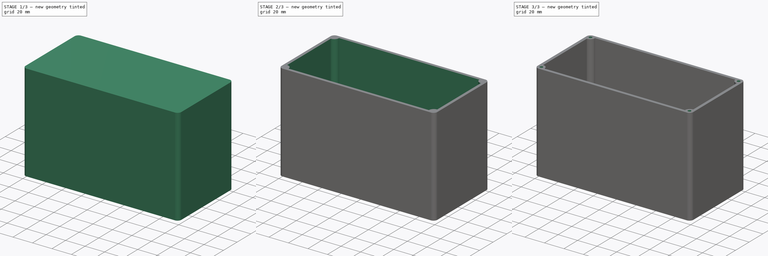
[diagram: build sequence overview — one tinted view per stage of 3, left to right]
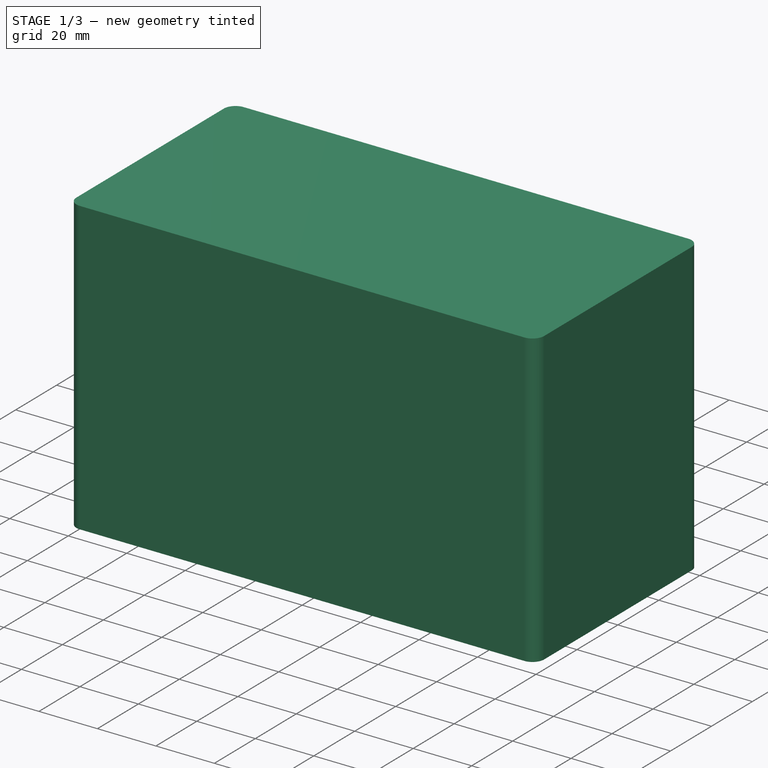
[diagram: stage 1 of 3 — iso view after this stage's code; geometry added in this stage tinted green]
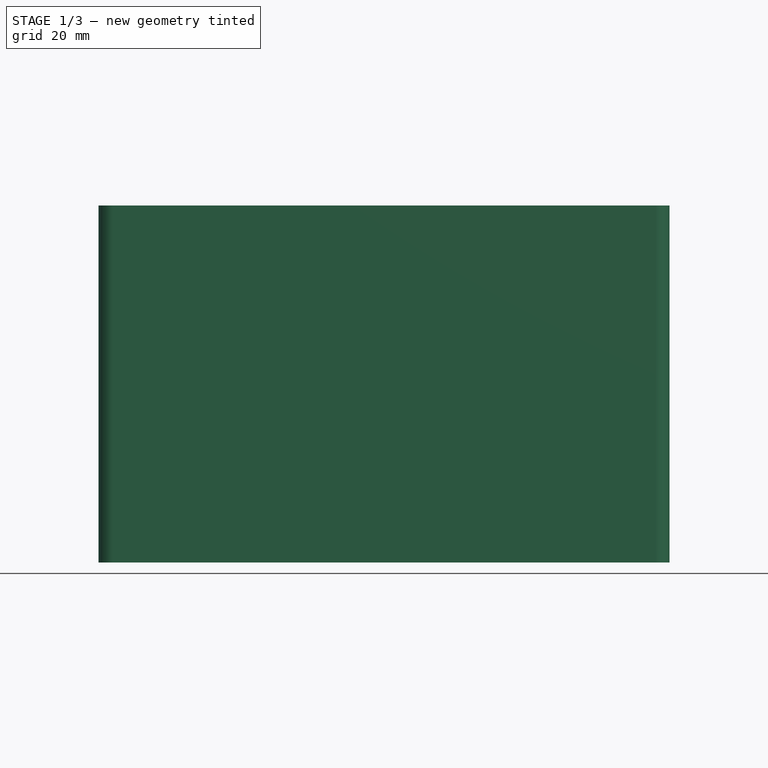
[diagram: stage 1 of 3 — front view after this stage's code; geometry added in this stage tinted green]
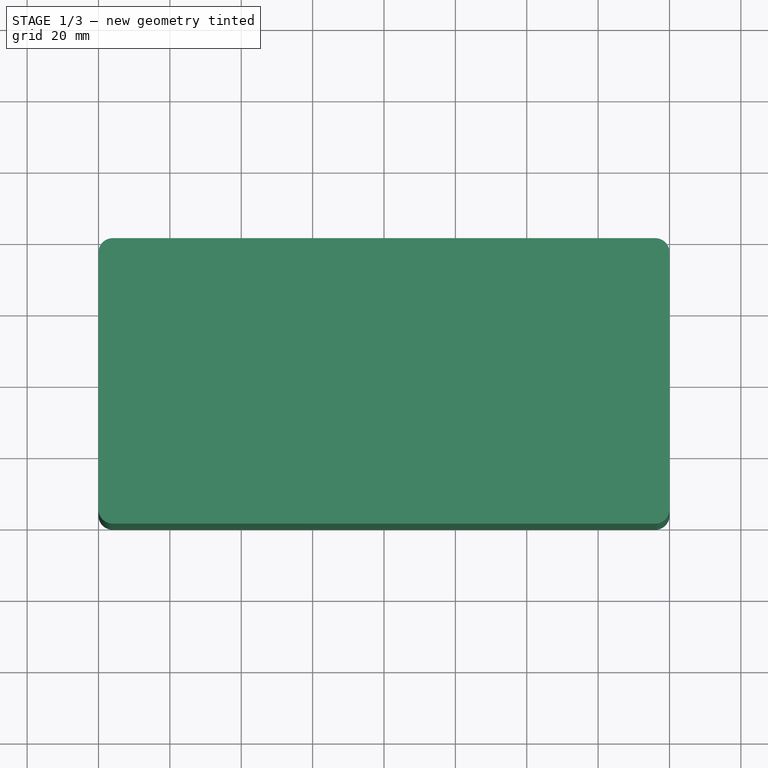
[diagram: stage 1 of 3 — top view after this stage's code; geometry added in this stage tinted green]
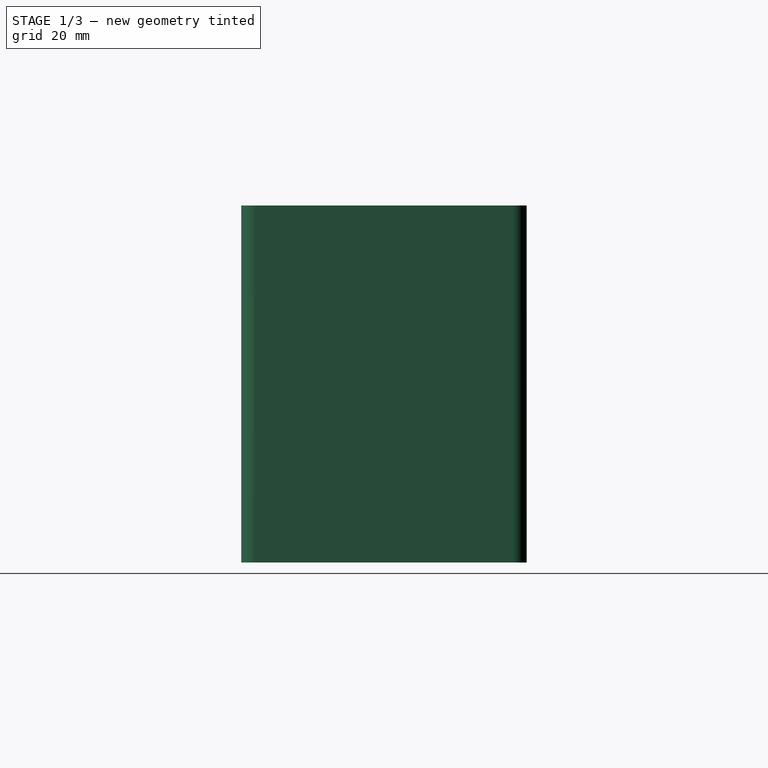
[diagram: stage 1 of 3 — right view after this stage's code; geometry added in this stage tinted green]
FCSTD DOCUMENT  (FreeCAD 1.0R39319 (Git))
Label: Zbiornik
License: All rights reserved
LicenseURL: https://en.wikipedia.org/wiki/All_rights_reserved
objects: Sketcher::SketchObject×3, PartDesign::Pocket×2, PartDesign::Mirrored×2, PartDesign::Pad×1, PartDesign::Fillet×1, PartDesign::MultiTransform×1, PartDesign::Body×1
note: 25 computed .brp shape members not serialized (recipe doc carries the construction recipe); baked Part::Feature solids carry a one-line shape summary decoded from their .brp

FEATURE [Sketcher::SketchObject] Sketch
  ArcFitTolerance = 1e-06
  AttachmentSupport = -> [XY_Plane]
  FullyConstrained = true
  MakeInternals = false
  MapMode = 5
  sketch-geometry (6):
    g0: LineSegment StartX=-80 StartY=40 StartZ=0 EndX=-80 EndY=-40 EndZ=0
    g1: LineSegment StartX=-80 StartY=-40 StartZ=0 EndX=80 EndY=-40 EndZ=0
    g2: LineSegment StartX=80 StartY=-40 StartZ=0 EndX=80 EndY=40 EndZ=0
    g3: LineSegment StartX=80 StartY=40 StartZ=0 EndX=-80 EndY=40 EndZ=0
    g4: GeomPoint [constr] X=0 Y=0 Z=0
    g5: GeomPoint [constr] X=0 Y=0 Z=0
  constraints (13):
    c: Coincident(g0,g1)
    c: Coincident(g1,g2)
    c: Coincident(g2,g3)
    c: Coincident(g3,g0)
    c: Vertical(g0)
    c: Vertical(g2)
    c: Horizontal(g1)
    c: Horizontal(g3)
    c: Symmetric(g2,g0,g4)
    c: Coincident(g4,g-1)
    c: DistanceY(g0,g0) = 80
    c: DistanceX(g3,g3) = 160
    c: Coincident(g5,g4)
FEATURE [PartDesign::Pad] Pad
  Direction = (0,0,1)
  Length = 100
  Length2 = 10
  Profile = -> Sketch
  ReferenceAxis = -> Sketch [N_Axis]
  Refine = true
  Suppressed = false
  Type = 0
FEATURE [PartDesign::Fillet] Fillet
  Base = -> Pad [Edge5,Edge8,Edge1,Edge2]
  BaseFeature = -> Pad
  Radius = 4
  Refine = true
  SupportTransform = false
  Suppressed = false
  UseAllEdges = false
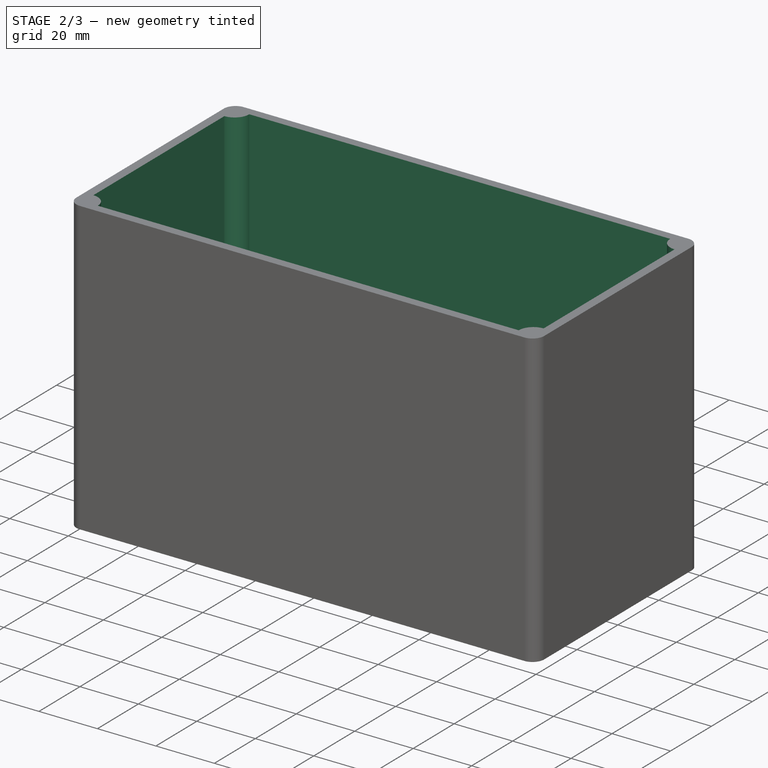
[diagram: stage 2 of 3 — iso view after this stage's code; geometry added in this stage tinted green]
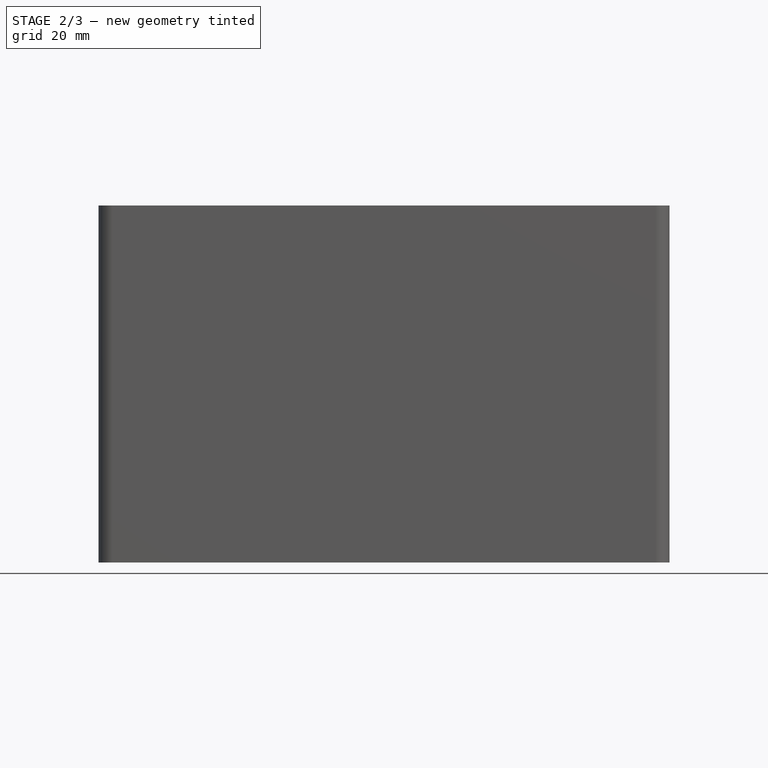
[diagram: stage 2 of 3 — front view after this stage's code; geometry added in this stage tinted green]
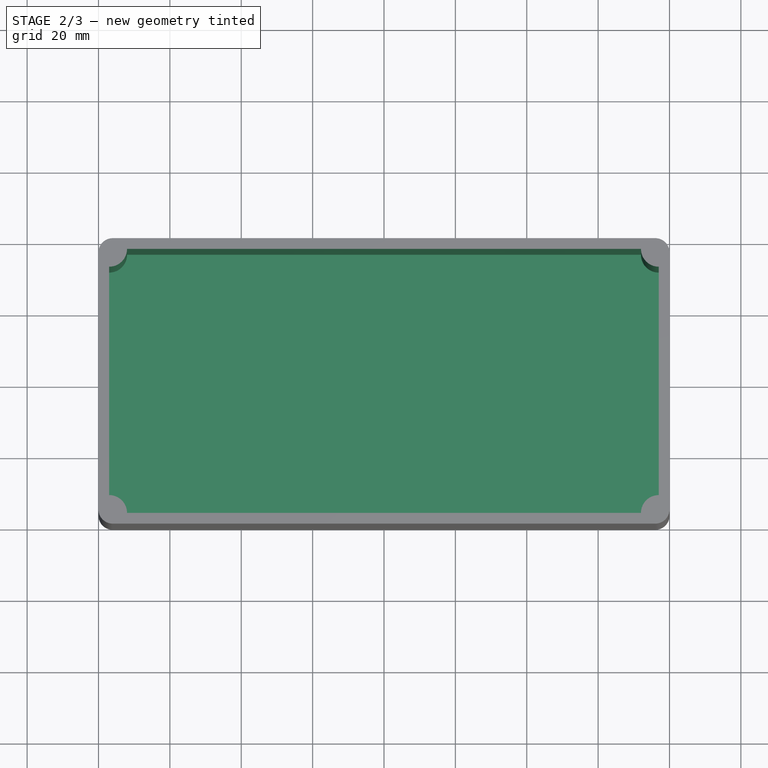
[diagram: stage 2 of 3 — top view after this stage's code; geometry added in this stage tinted green]
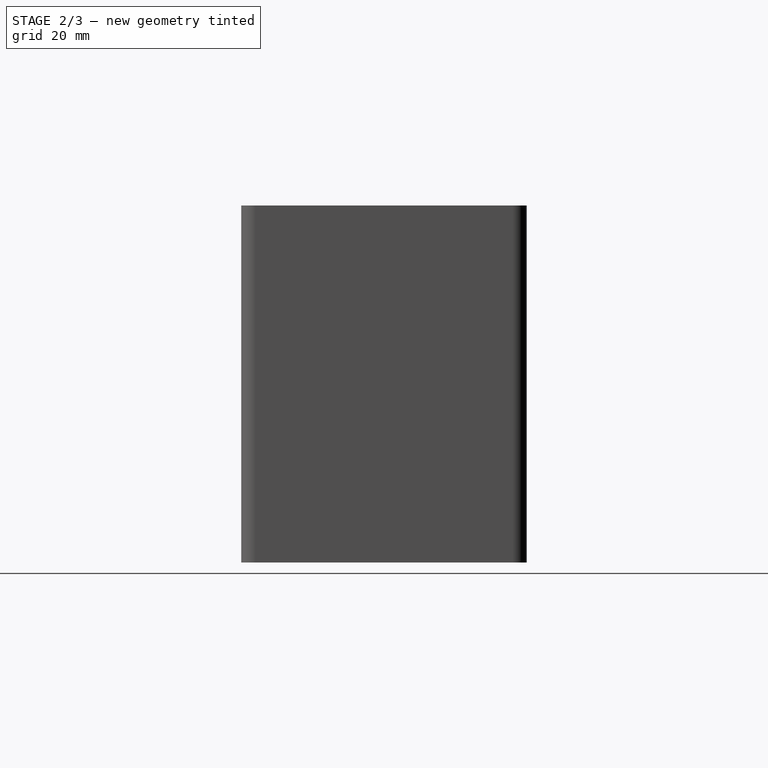
[diagram: stage 2 of 3 — right view after this stage's code; geometry added in this stage tinted green]
FEATURE [Sketcher::SketchObject] Sketch001
  ArcFitTolerance = 1e-06
  AttachmentSupport = -> [Fillet]
  ExternalGeometry = -> [Fillet]
  FullyConstrained = true
  MakeInternals = false
  MapMode = 5
  Placement = pos=(0,0,100) rot=(0,0,1;0rad)
  sketch-geometry (9):
    g0: LineSegment StartX=-77 StartY=32 StartZ=0 EndX=-77 EndY=-32 EndZ=0
    g1: LineSegment StartX=-72 StartY=-37 StartZ=0 EndX=72 EndY=-37 EndZ=0
    g2: LineSegment StartX=77 StartY=-32 StartZ=0 EndX=77 EndY=32 EndZ=0
    g3: LineSegment StartX=72 StartY=37 StartZ=0 EndX=-72 EndY=37 EndZ=0
    g4: GeomPoint [constr] X=0 Y=0 Z=0
    g5: ArcOfCircle CenterX=-77 CenterY=37 CenterZ=0 NormalX=0 NormalY=0 NormalZ=1 AngleXU=0 Radius=5 StartAngle=4.71239 EndAngle=6.28319
    g6: ArcOfCircle CenterX=-77 CenterY=-37 CenterZ=0 NormalX=0 NormalY=0 NormalZ=1 AngleXU=0 Radius=5 StartAngle=2e-16 EndAngle=1.5708
    g7: ArcOfCircle CenterX=77 CenterY=37 CenterZ=0 NormalX=0 NormalY=0 NormalZ=1 AngleXU=0 Radius=5 StartAngle=3.14159 EndAngle=4.71239
    g8: ArcOfCircle CenterX=77 CenterY=-37 CenterZ=0 NormalX=0 NormalY=0 NormalZ=1 AngleXU=0 Radius=5 StartAngle=1.5708 EndAngle=3.14159
  constraints (29):
    c: Vertical(g0)
    c: Vertical(g2)
    c: Horizontal(g1)
    c: Horizontal(g3)
    c: Coincident(g4,g-1)
    c: Distance(g7,g-3) = 3
    c: Distance(g-4,g0) = 3
    c: Radius(g5) = 5
    c: Radius(g6) = 5
    c: Radius(g7) = 5
    c: Radius(g8) = 5
    c: Coincident(g3,g5)
    c: Coincident(g0,g5)
    c: Coincident(g3,g7)
    c: Coincident(g2,g7)
    c: Coincident(g2,g8)
    c: Coincident(g1,g8)
    c: Coincident(g0,g6)
    c: Coincident(g1,g6)
    c: Distance(g5,g-2) = 77
    c: Distance(g5,g-1) = 37
    c: Distance(g6,g-1) = 37
    c: Distance(g6,g-2) = 77
    c: Distance(g8,g-2) = 77
    c: Distance(g8,g-1) = 37
    c: Distance(g7,g-2) = 77
    c: Distance(g-5,g2) = 3
    c: Distance(g-3,g3) = 3
    c: Distance(g-6,g1) = 3
FEATURE [PartDesign::Pocket] Pocket
  BaseFeature = -> Fillet
  Direction = (0,0,-1)
  Length = 95
  Length2 = 5
  Profile = -> Sketch001
  ReferenceAxis = -> Sketch001 [N_Axis]
  Refine = true
  Suppressed = false
  Type = 0
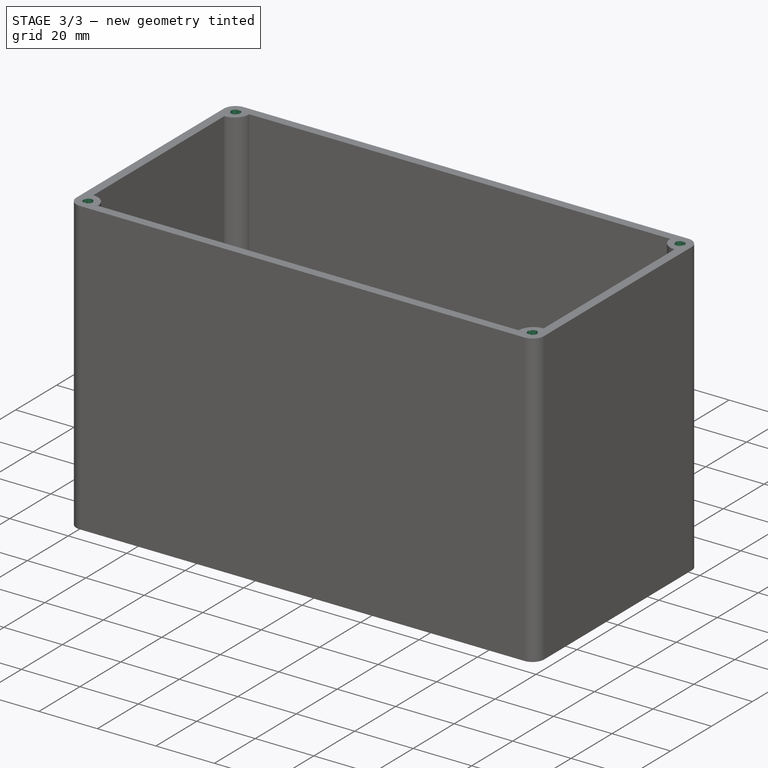
[diagram: stage 3 of 3 — iso view after this stage's code; geometry added in this stage tinted green]
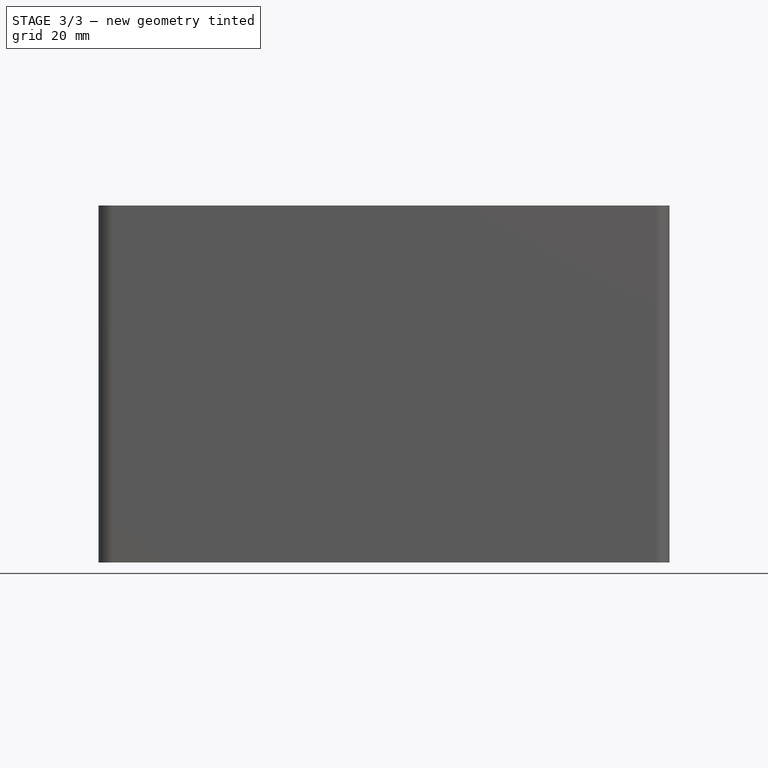
[diagram: stage 3 of 3 — front view after this stage's code; geometry added in this stage tinted green]
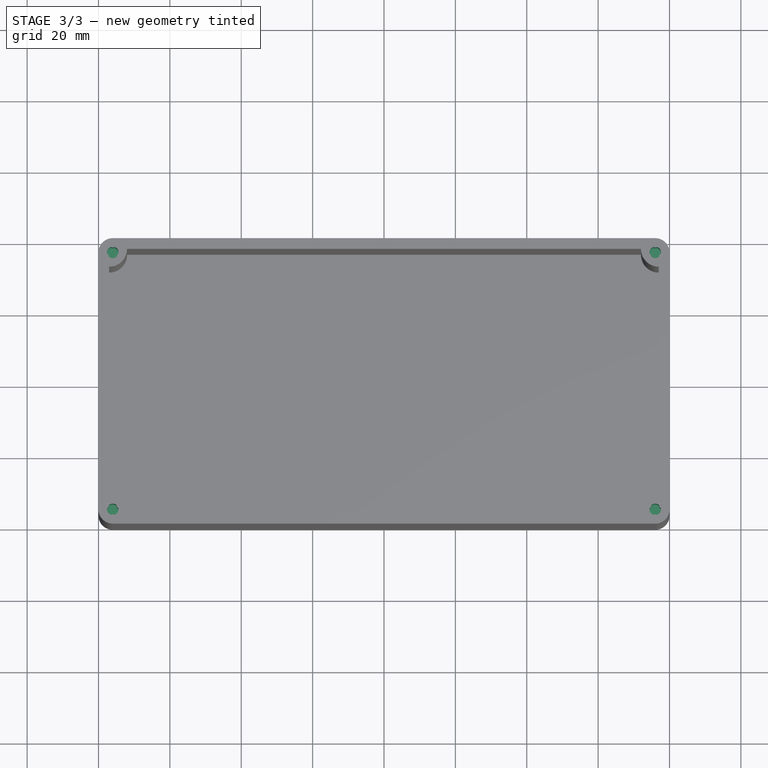
[diagram: stage 3 of 3 — top view after this stage's code; geometry added in this stage tinted green]
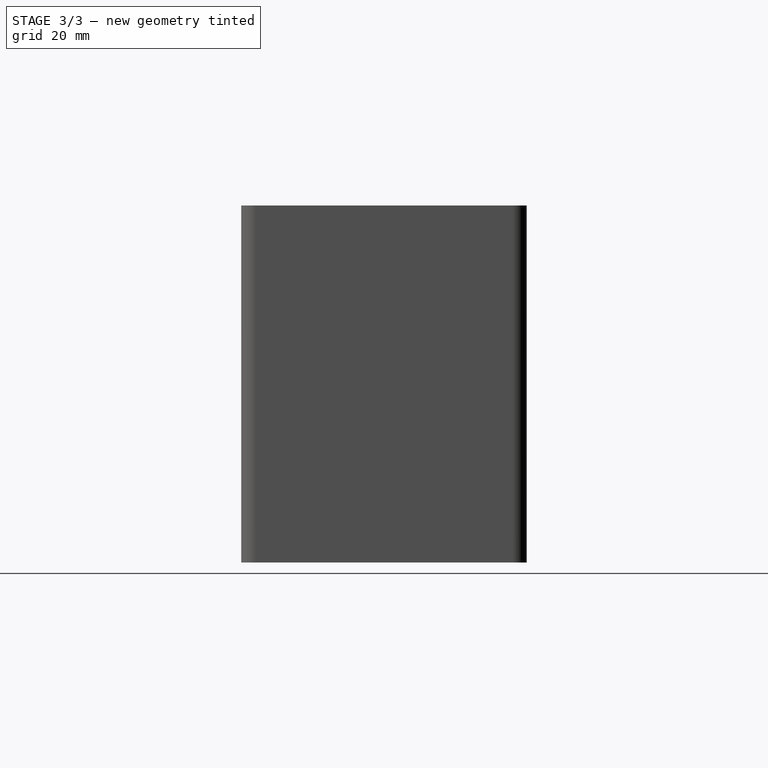
[diagram: stage 3 of 3 — right view after this stage's code; geometry added in this stage tinted green]
FEATURE [Sketcher::SketchObject] Sketch002
  ArcFitTolerance = 1e-06
  AttachmentSupport = -> [Pocket]
  ExternalGeometry = -> [Pocket]
  FullyConstrained = true
  MakeInternals = false
  MapMode = 5
  Placement = pos=(0,0,100) rot=(0,0,1;0rad)
  sketch-geometry (11):
    g0: ArcOfCircle CenterX=-76 CenterY=36 CenterZ=0 NormalX=0 NormalY=0 NormalZ=1 AngleXU=0 Radius=1.6 StartAngle=1.87288 EndAngle=3.36311
    g1: LineSegment [constr] StartX=-73.9631 StartY=34.824 StartZ=0 EndX=-76 EndY=38.352 EndZ=0
    g2: LineSegment [constr] StartX=-76 StartY=38.352 StartZ=0 EndX=-78.0369 EndY=34.824 EndZ=0
    g3: LineSegment [constr] StartX=-78.0369 StartY=34.824 StartZ=0 EndX=-73.9631 EndY=34.824 EndZ=0
    g4: Circle [constr] CenterX=-76 CenterY=36 CenterZ=0 NormalX=0 NormalY=0 NormalZ=1 AngleXU=0 Radius=2.35204
    g5: ArcOfCircle CenterX=-76 CenterY=38.352 CenterZ=0 NormalX=0 NormalY=0 NormalZ=1 AngleXU=0 Radius=0.952038 StartAngle=4.18879 EndAngle=5.23599
    g6: Circle [constr] CenterX=-76 CenterY=36 CenterZ=0 NormalX=0 NormalY=0 NormalZ=1 AngleXU=0 Radius=1.4
    g7: ArcOfCircle CenterX=-73.9631 CenterY=34.824 CenterZ=0 NormalX=0 NormalY=0 NormalZ=1 AngleXU=0 Radius=0.952038 StartAngle=2.0944 EndAngle=3.14159
    g8: ArcOfCircle CenterX=-78.0369 CenterY=34.824 CenterZ=0 NormalX=0 NormalY=0 NormalZ=1 AngleXU=0 Radius=0.952038 StartAngle=4.91e-14 EndAngle=1.0472
    g9: ArcOfCircle CenterX=-76 CenterY=36 CenterZ=0 NormalX=0 NormalY=0 NormalZ=1 AngleXU=0 Radius=1.6 StartAngle=6.06167 EndAngle=7.5519
    g10: ArcOfCircle CenterX=-76 CenterY=36 CenterZ=0 NormalX=0 NormalY=0 NormalZ=1 AngleXU=0 Radius=1.6 StartAngle=3.96728 EndAngle=5.4575
  constraints (31):
    c: Diameter(g0) = 3.2
    c: Coincident(g0,g-3)
    c: Coincident(g1,g2)
    c: Coincident(g2,g3)
    c: Coincident(g3,g1)
    c: Equal(g1,g2)
    c: Equal(g1,g3)
    c: PointOnObject(g1,g4)
    c: PointOnObject(g2,g4)
    c: PointOnObject(g3,g4)
    c: Coincident(g4,g0)
    c: Horizontal(g3)
    c: Coincident(g5,g1)
    c: Coincident(g6,g0)
    c: Tangent(g6,g5)
    c: Coincident(g7,g1)
    c: Tangent(g7,g6)
    c: Coincident(g8,g2)
    c: Tangent(g8,g6)
    c: Equal(g0,g9)
    c: Coincident(g0,g9)
    c: Equal(g0,g10)
    c: PointOnObject(g0,g2)
    c: Coincident(g0,g10)
    c: Coincident(g7,g10)
    c: Coincident(g9,g7)
    c: Coincident(g9,g5)
    c: Coincident(g5,g0)
    c: Coincident(g0,g8)
    c: Coincident(g10,g8)
    c: Diameter(g6) = 2.8
FEATURE [PartDesign::Pocket] Pocket001
  BaseFeature = -> Pocket
  Direction = (0,0,-1)
  Length = 15
  Length2 = 5
  Profile = -> Sketch002
  ReferenceAxis = -> Sketch002 [N_Axis]
  Refine = true
  Suppressed = false
  Type = 0
FEATURE [PartDesign::Mirrored] Mirrored
  MirrorPlane = -> Sketch002 [V_Axis]
  Refine = true
  Suppressed = false
  TransformMode = 0
FEATURE [PartDesign::Mirrored] Mirrored001
  MirrorPlane = -> Sketch002 [H_Axis]
  Refine = true
  Suppressed = false
  TransformMode = 0
FEATURE [PartDesign::MultiTransform] MultiTransform
  BaseFeature = -> Pocket001
  Originals = -> [Pocket001]
  Refine = true
  Suppressed = false
  TransformMode = 0
  Transformations = -> [Mirrored,Mirrored001]
FEATURE [PartDesign::Body] Body  label="Zawartość"
  AllowCompound = false
  Group = -> [Sketch,Pad,Fillet,Sketch001,Pocket,Sketch002,Pocket001,MultiTransform,Mirrored,Mirrored001]
  Origin = -> Origin
  Tip = -> MultiTransform
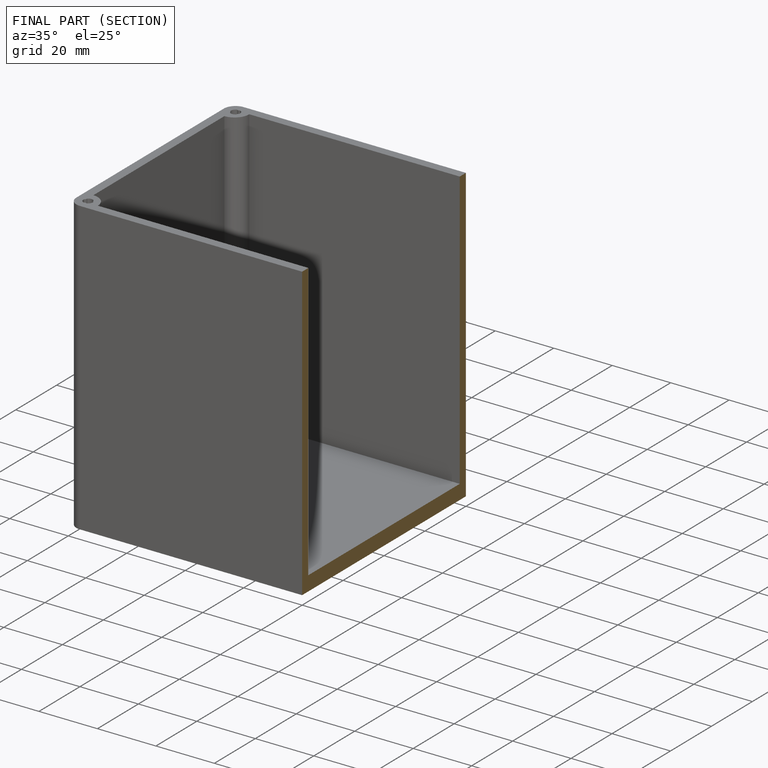
[diagram: finished part — half-section view (interior)]
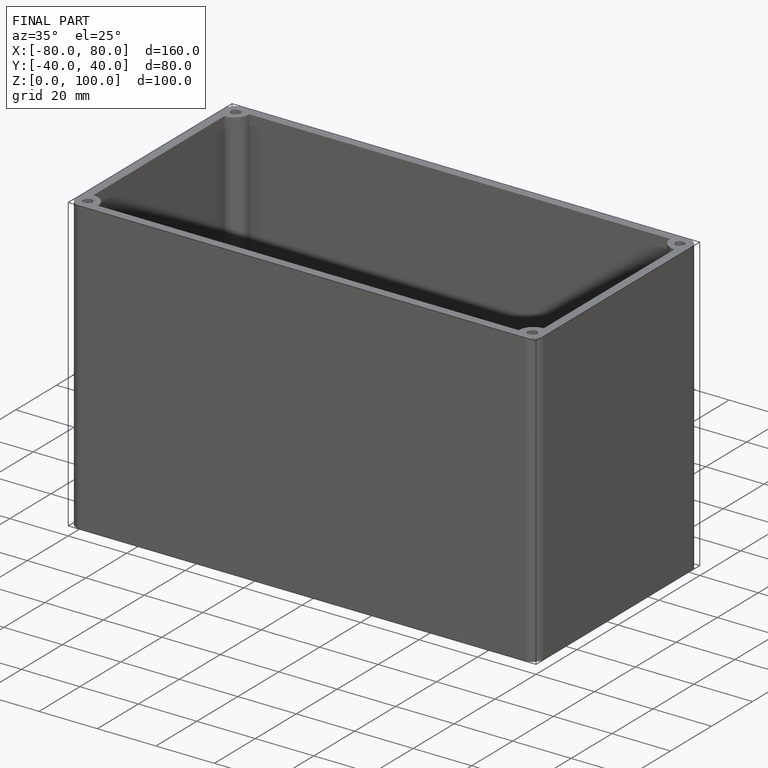
[diagram: finished part — iso view with bounding-box wireframe]
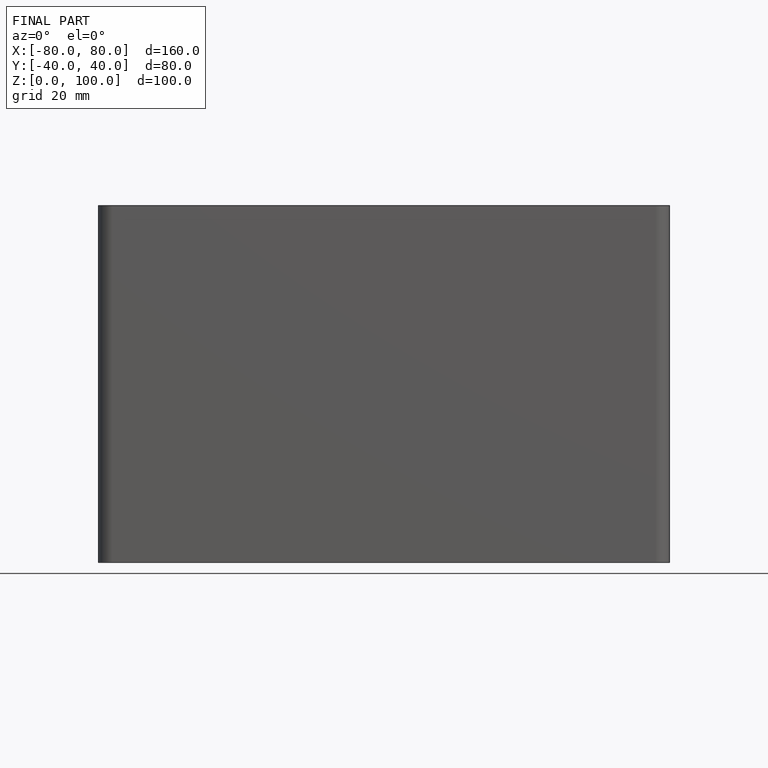
[diagram: finished part — front view with bounding-box wireframe]
